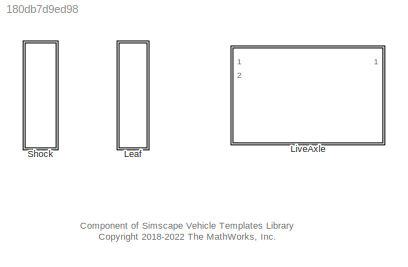
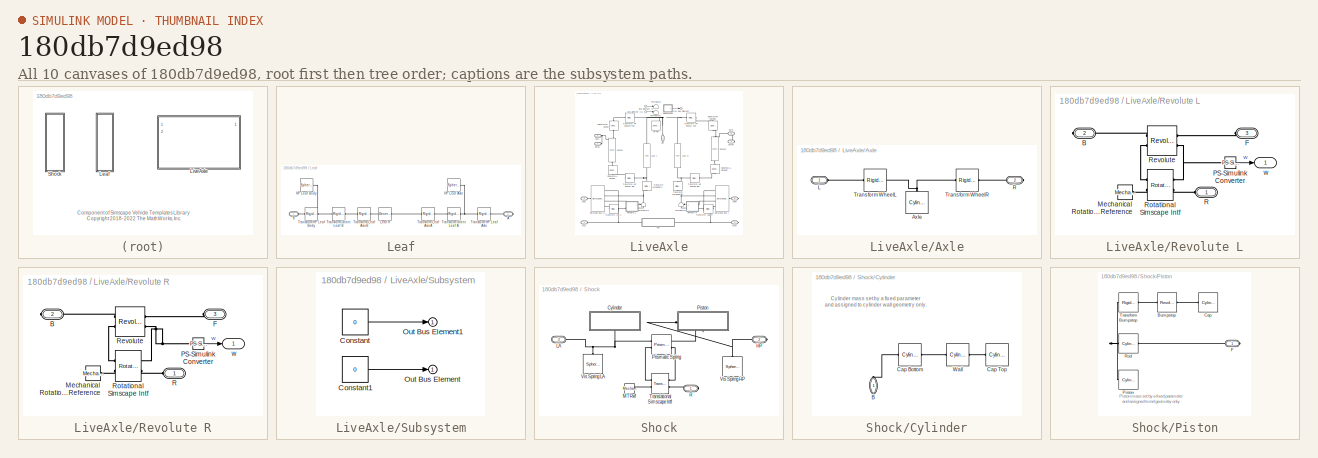
[diagram: thumbnail index - all 10 canvases of the model, root first then tree order]
MODEL slx_180db7d9ed98
KIND library
CONFIG AbsTol = auto
CONFIG EnableMultiTasking = off
CONFIG FixedStep = auto
CONFIG MaxStep = auto
CONFIG MinStep = auto
CONFIG RelTol = 1e-3
CONFIG SampleTimeConstraint = Unconstrained
CONFIG SolverName = VariableStepAuto
CONFIG StartTime = 0.0
CONFIG StopTime = 10.0
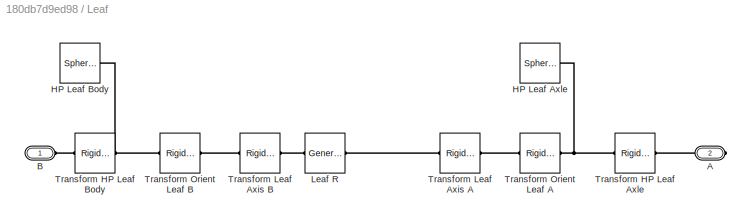
BLOCK [SubSystem] Leaf
  NameLocation = right
  Ports = [0, 0, 0, 0, 0, 1, 1]
  RequestExecContextInheritance = off
BLOCK [PMIOPort] Leaf/A
  Port = 2
  Side = Right
BLOCK [PMIOPort] Leaf/B
  Side = Left
BLOCK [Reference] Leaf/HP Leaf Axle  REF=sm_lib/Body Elements/Spherical Solid
  Ports = [0, 0, 0, 0, 0, 0, 1]
  SourceBlock = sm_lib/Body Elements/Spherical Solid
  SourceProductBaseCode = MS
  SourceType = Spherical Solid
BLOCK [Reference] Leaf/HP Leaf Body  REF=sm_lib/Body Elements/Spherical Solid
  Ports = [0, 0, 0, 0, 0, 0, 1]
  SourceBlock = sm_lib/Body Elements/Spherical Solid
  SourceProductBaseCode = MS
  SourceType = Spherical Solid
BLOCK [Reference] Leaf/Leaf R  REF=sm_lib/Body Elements/Flexible Bodies/Beams/General Flexible Beam
  Ports = [0, 0, 0, 0, 0, 1, 1]
  SourceBlock = sm_lib/Body Elements/Flexible Bodies/Beams/General Flexible Beam
  SourceProductBaseCode = MS
  SourceType = General Flexible Beam
BLOCK [Reference] Leaf/Transform HP Leaf Axle  REF=sm_lib/Frames and
Transforms/Rigid
Transform
  Ports = [0, 0, 0, 0, 0, 1, 1]
  SourceBlock = sm_lib/Frames and\nTransforms/Rigid\nTransform
  SourceProductBaseCode = MS
  SourceType = Rigid\nTransform
BLOCK [Reference] Leaf/Transform HP Leaf Body  REF=sm_lib/Frames and
Transforms/Rigid
Transform
  Ports = [0, 0, 0, 0, 0, 1, 1]
  SourceBlock = sm_lib/Frames and\nTransforms/Rigid\nTransform
  SourceProductBaseCode = MS
  SourceType = Rigid\nTransform
BLOCK [Reference] Leaf/Transform Leaf Axis A  REF=sm_lib/Frames and
Transforms/Rigid
Transform
  Ports = [0, 0, 0, 0, 0, 1, 1]
  SourceBlock = sm_lib/Frames and\nTransforms/Rigid\nTransform
  SourceProductBaseCode = MS
  SourceType = Rigid\nTransform
BLOCK [Reference] Leaf/Transform Leaf Axis B  REF=sm_lib/Frames and
Transforms/Rigid
Transform
  Ports = [0, 0, 0, 0, 0, 1, 1]
  SourceBlock = sm_lib/Frames and\nTransforms/Rigid\nTransform
  SourceProductBaseCode = MS
  SourceType = Rigid\nTransform
BLOCK [Reference] Leaf/Transform Orient Leaf A  REF=sm_lib/Frames and
Transforms/Rigid
Transform
  Ports = [0, 0, 0, 0, 0, 1, 1]
  SourceBlock = sm_lib/Frames and\nTransforms/Rigid\nTransform
  SourceProductBaseCode = MS
  SourceType = Rigid\nTransform
BLOCK [Reference] Leaf/Transform Orient Leaf B  REF=sm_lib/Frames and
Transforms/Rigid
Transform
  Ports = [0, 0, 0, 0, 0, 1, 1]
  SourceBlock = sm_lib/Frames and\nTransforms/Rigid\nTransform
  SourceProductBaseCode = MS
  SourceType = Rigid\nTransform
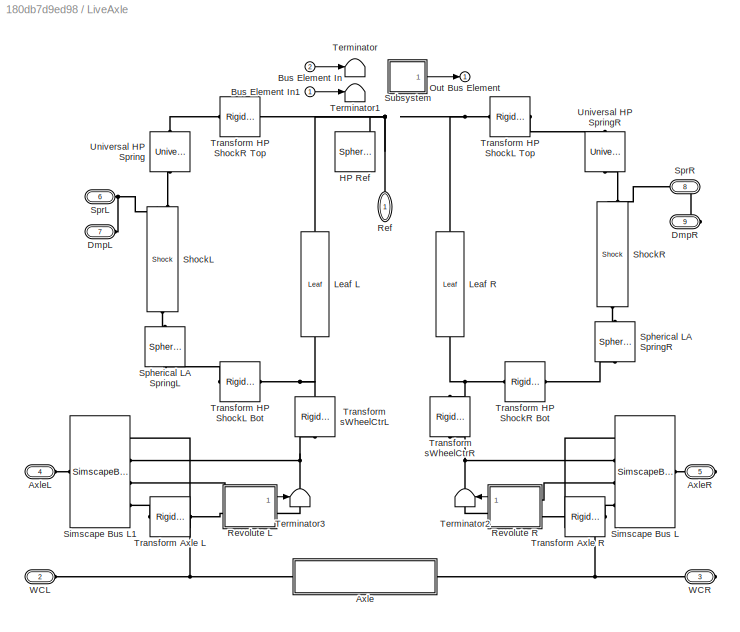
BLOCK [SubSystem] LiveAxle
  Ports = [2, 1, 0, 0, 0, 4, 5]
  RequestExecContextInheritance = off
  VariantControl = LiveAxle
BLOCK [Reference] LiveAxle/ Transform sWheelCtrL  REF=sm_lib/Frames and
Transforms/Rigid
Transform
  NameLocation = left
  Ports = [0, 0, 0, 0, 0, 1, 1]
  SourceBlock = sm_lib/Frames and\nTransforms/Rigid\nTransform
  SourceProductBaseCode = MS
  SourceType = Rigid\nTransform
BLOCK [Reference] LiveAxle/ Transform sWheelCtrR  REF=sm_lib/Frames and
Transforms/Rigid
Transform
  NameLocation = right
  Ports = [0, 0, 0, 0, 0, 1, 1]
  SourceBlock = sm_lib/Frames and\nTransforms/Rigid\nTransform
  SourceProductBaseCode = MS
  SourceType = Rigid\nTransform
BLOCK [SubSystem] LiveAxle/Axle
  Ports = [0, 0, 0, 0, 0, 1, 1]
  RequestExecContextInheritance = off
BLOCK [Reference] LiveAxle/Axle/Axle  REF=sm_lib/Body Elements/Cylindrical Solid
  NameLocation = right
  Ports = [0, 0, 0, 0, 0, 0, 1]
  SourceBlock = sm_lib/Body Elements/Cylindrical Solid
  SourceProductBaseCode = MS
  SourceType = Cylindrical Solid
BLOCK [PMIOPort] LiveAxle/Axle/L
  Side = Left
BLOCK [PMIOPort] LiveAxle/Axle/R
  Port = 2
  Side = Right
BLOCK [Reference] LiveAxle/Axle/Transform WheelL  REF=sm_lib/Frames and
Transforms/Rigid
Transform
  Ports = [0, 0, 0, 0, 0, 1, 1]
  SourceBlock = sm_lib/Frames and\nTransforms/Rigid\nTransform
  SourceProductBaseCode = MS
  SourceType = Rigid\nTransform
BLOCK [Reference] LiveAxle/Axle/Transform WheelR  REF=sm_lib/Frames and
Transforms/Rigid
Transform
  Ports = [0, 0, 0, 0, 0, 1, 1]
  SourceBlock = sm_lib/Frames and\nTransforms/Rigid\nTransform
  SourceProductBaseCode = MS
  SourceType = Rigid\nTransform
BLOCK [PMIOPort] LiveAxle/AxleL
  Port = 4
  Side = Left
BLOCK [PMIOPort] LiveAxle/AxleR
  Port = 5
  Side = Right
BLOCK [Inport] LiveAxle/Bus Element In
  Port = 2
BLOCK [Inport] LiveAxle/Bus Element In1
BLOCK [PMIOPort] LiveAxle/DmpL
  Port = 7
  Side = Left
BLOCK [PMIOPort] LiveAxle/DmpR
  Port = 9
  Side = Right
BLOCK [Reference] LiveAxle/HP Ref  REF=sm_lib/Body Elements/Spherical Solid
  Ports = [0, 0, 0, 0, 0, 0, 1]
  SourceBlock = sm_lib/Body Elements/Spherical Solid
  SourceProductBaseCode = MS
  SourceType = Spherical Solid
BLOCK [Reference] LiveAxle/Leaf L  REF=$bdroot/Leaf
  NameLocation = left
  Ports = [0, 0, 0, 0, 0, 1, 1]
  SourceBlock = $bdroot/Leaf
  SourceType = Leaf spring
BLOCK [Reference] LiveAxle/Leaf R  REF=$bdroot/Leaf
  NameLocation = right
  Ports = [0, 0, 0, 0, 0, 1, 1]
  SourceBlock = $bdroot/Leaf
  SourceType = Leaf spring
BLOCK [Outport] LiveAxle/Out Bus Element
  VectorParamsAs1DForOutWhenUnconnected = off
BLOCK [PMIOPort] LiveAxle/Ref
  NameLocation = left
  Side = Right
BLOCK [SubSystem] LiveAxle/Revolute L
  Ports = [0, 1, 0, 0, 0, 2, 1]
  RequestExecContextInheritance = off
BLOCK [PMIOPort] LiveAxle/Revolute L/B
  Port = 2
  Side = Right
BLOCK [PMIOPort] LiveAxle/Revolute L/F
  Port = 3
  Side = Left
BLOCK [Reference] LiveAxle/Revolute L/Mechanical Rotational Reference  REF=fl_lib/Mechanical/Rotational Elements/Mechanical
Rotational Reference
  Ports = [0, 0, 0, 0, 0, 1]
  SourceBlock = fl_lib/Mechanical/Rotational Elements/Mechanical\nRotational Reference
  SourceProductBaseCode = PW,SS,VE
  SourceType = Mechanical\nRotational Reference
BLOCK [Reference] LiveAxle/Revolute L/PS-Simulink Converter  REF=nesl_utility/PS-Simulink
Converter
  Ports = [0, 1, 0, 0, 0, 1]
  SourceBlock = nesl_utility/PS-Simulink\nConverter
  SourceProductBaseCode = SS,PW,VE
  SourceType = PS-Simulink\nConverter
BLOCK [PMIOPort] LiveAxle/Revolute L/R
  Side = Left
BLOCK [Reference] LiveAxle/Revolute L/Revolute  REF=sm_lib/Joints/Revolute Joint
  Ports = [0, 0, 0, 0, 0, 2, 2]
  SourceBlock = sm_lib/Joints/Revolute Joint
  SourceProductBaseCode = MS
  SourceType = Revolute Joint
BLOCK [Reference] LiveAxle/Revolute L/Rotational Simscape Intf  REF=sm_car_lib/Utilities/Rotational  (lib defined in slx_05426f0848b6, slx_5dc2867fb1c9)
Simscape Intf
  Ports = [0, 0, 0, 0, 0, 2, 2]
  SourceBlock = sm_car_lib/Utilities/Rotational\nSimscape Intf
  SourceType = SubSystem
BLOCK [Outport] LiveAxle/Revolute L/w
  VectorParamsAs1DForOutWhenUnconnected = off
BLOCK [SubSystem] LiveAxle/Revolute R
  Ports = [0, 1, 0, 0, 0, 2, 1]
  RequestExecContextInheritance = off
BLOCK [PMIOPort] LiveAxle/Revolute R/B
  Port = 2
  Side = Right
BLOCK [PMIOPort] LiveAxle/Revolute R/F
  Port = 3
  Side = Left
BLOCK [Reference] LiveAxle/Revolute R/Mechanical Rotational Reference  REF=fl_lib/Mechanical/Rotational Elements/Mechanical
Rotational Reference
  Ports = [0, 0, 0, 0, 0, 1]
  SourceBlock = fl_lib/Mechanical/Rotational Elements/Mechanical\nRotational Reference
  SourceProductBaseCode = PW,SS,VE
  SourceType = Mechanical\nRotational Reference
BLOCK [Reference] LiveAxle/Revolute R/PS-Simulink Converter  REF=nesl_utility/PS-Simulink
Converter
  Ports = [0, 1, 0, 0, 0, 1]
  SourceBlock = nesl_utility/PS-Simulink\nConverter
  SourceProductBaseCode = SS,PW,VE
  SourceType = PS-Simulink\nConverter
BLOCK [PMIOPort] LiveAxle/Revolute R/R
  Side = Left
BLOCK [Reference] LiveAxle/Revolute R/Revolute  REF=sm_lib/Joints/Revolute Joint
  Ports = [0, 0, 0, 0, 0, 2, 2]
  SourceBlock = sm_lib/Joints/Revolute Joint
  SourceProductBaseCode = MS
  SourceType = Revolute Joint
BLOCK [Reference] LiveAxle/Revolute R/Rotational Simscape Intf  REF=sm_car_lib/Utilities/Rotational  (lib defined in slx_05426f0848b6, slx_5dc2867fb1c9)
Simscape Intf
  Ports = [0, 0, 0, 0, 0, 2, 2]
  SourceBlock = sm_car_lib/Utilities/Rotational\nSimscape Intf
  SourceType = SubSystem
BLOCK [Outport] LiveAxle/Revolute R/w
  VectorParamsAs1DForOutWhenUnconnected = off
BLOCK [Reference] LiveAxle/ShockL  REF=$bdroot/Shock
  NameLocation = right
  Ports = [0, 0, 0, 0, 0, 1, 2]
  SourceBlock = $bdroot/Shock
  SourceType = Shock Absorber Parts
BLOCK [Reference] LiveAxle/ShockR  REF=$bdroot/Shock
  NameLocation = left
  Ports = [0, 0, 0, 0, 0, 1, 2]
  SourceBlock = $bdroot/Shock
  SourceType = Shock Absorber Parts
BLOCK [SimscapeBus] LiveAxle/Simscape Bus L
  HierarchyStrings = RaceSpin;RaceFix;Axle1D;AxleIn
  Ports = [0, 0, 0, 0, 0, 4, 1]
BLOCK [SimscapeBus] LiveAxle/Simscape Bus L1
  HierarchyStrings = RaceSpin;RaceFix;Axle1D;AxleIn
  Ports = [0, 0, 0, 0, 0, 4, 1]
BLOCK [Reference] LiveAxle/Spherical LA SpringL  REF=sm_lib/Joints/Spherical
Joint
  NameLocation = left
  Ports = [0, 0, 0, 0, 0, 1, 1]
  SourceBlock = sm_lib/Joints/Spherical\nJoint
  SourceProductBaseCode = MS
  SourceType = Spherical\nJoint
BLOCK [Reference] LiveAxle/Spherical LA SpringR  REF=sm_lib/Joints/Spherical
Joint
  NameLocation = right
  Ports = [0, 0, 0, 0, 0, 1, 1]
  SourceBlock = sm_lib/Joints/Spherical\nJoint
  SourceProductBaseCode = MS
  SourceType = Spherical\nJoint
BLOCK [PMIOPort] LiveAxle/SprL
  Port = 6
  Side = Left
BLOCK [PMIOPort] LiveAxle/SprR
  Port = 8
  Side = Right
BLOCK [SubSystem] LiveAxle/Subsystem
  Ports = [0, 1]
  RequestExecContextInheritance = off
BLOCK [Constant] LiveAxle/Subsystem/Constant
  Value = 0
BLOCK [Constant] LiveAxle/Subsystem/Constant1
  Value = 0
BLOCK [Outport] LiveAxle/Subsystem/Out Bus Element
  VectorParamsAs1DForOutWhenUnconnected = off
BLOCK [Outport] LiveAxle/Subsystem/Out Bus Element1
  VectorParamsAs1DForOutWhenUnconnected = off
BLOCK [Terminator] LiveAxle/Terminator
BLOCK [Terminator] LiveAxle/Terminator1
BLOCK [Terminator] LiveAxle/Terminator2
BLOCK [Terminator] LiveAxle/Terminator3
BLOCK [Reference] LiveAxle/Transform Axle L  REF=sm_lib/Frames and
Transforms/Rigid
Transform
  Ports = [0, 0, 0, 0, 0, 1, 1]
  SourceBlock = sm_lib/Frames and\nTransforms/Rigid\nTransform
  SourceProductBaseCode = MS
  SourceType = Rigid\nTransform
BLOCK [Reference] LiveAxle/Transform Axle R  REF=sm_lib/Frames and
Transforms/Rigid
Transform
  Ports = [0, 0, 0, 0, 0, 1, 1]
  SourceBlock = sm_lib/Frames and\nTransforms/Rigid\nTransform
  SourceProductBaseCode = MS
  SourceType = Rigid\nTransform
BLOCK [Reference] LiveAxle/Transform HP ShockL Bot  REF=sm_lib/Frames and
Transforms/Rigid
Transform
  NameLocation = top
  Ports = [0, 0, 0, 0, 0, 1, 1]
  SourceBlock = sm_lib/Frames and\nTransforms/Rigid\nTransform
  SourceProductBaseCode = MS
  SourceType = Rigid\nTransform
BLOCK [Reference] LiveAxle/Transform HP ShockL Top  REF=sm_lib/Frames and
Transforms/Rigid
Transform
  Ports = [0, 0, 0, 0, 0, 1, 1]
  SourceBlock = sm_lib/Frames and\nTransforms/Rigid\nTransform
  SourceProductBaseCode = MS
  SourceType = Rigid\nTransform
BLOCK [Reference] LiveAxle/Transform HP ShockR Bot  REF=sm_lib/Frames and
Transforms/Rigid
Transform
  NameLocation = top
  Ports = [0, 0, 0, 0, 0, 1, 1]
  SourceBlock = sm_lib/Frames and\nTransforms/Rigid\nTransform
  SourceProductBaseCode = MS
  SourceType = Rigid\nTransform
BLOCK [Reference] LiveAxle/Transform HP ShockR Top  REF=sm_lib/Frames and
Transforms/Rigid
Transform
  Ports = [0, 0, 0, 0, 0, 1, 1]
  SourceBlock = sm_lib/Frames and\nTransforms/Rigid\nTransform
  SourceProductBaseCode = MS
  SourceType = Rigid\nTransform
BLOCK [Reference] LiveAxle/Universal HP Spring  REF=sm_lib/Joints/Universal
Joint
  NameLocation = left
  Ports = [0, 0, 0, 0, 0, 1, 1]
  SourceBlock = sm_lib/Joints/Universal\nJoint
  SourceProductBaseCode = MS
  SourceType = Universal\nJoint
BLOCK [Reference] LiveAxle/Universal HP SpringR  REF=sm_lib/Joints/Universal
Joint
  NameLocation = right
  Ports = [0, 0, 0, 0, 0, 1, 1]
  SourceBlock = sm_lib/Joints/Universal\nJoint
  SourceProductBaseCode = MS
  SourceType = Universal\nJoint
BLOCK [PMIOPort] LiveAxle/WCL
  Port = 2
  Side = Left
BLOCK [PMIOPort] LiveAxle/WCR
  Port = 3
  Side = Right
BLOCK [SubSystem] Shock
  NameLocation = right
  Ports = [0, 0, 0, 0, 0, 1, 2]
  RequestExecContextInheritance = off
BLOCK [SubSystem] Shock/Cylinder
  NameLocation = left
  Ports = [0, 0, 0, 0, 0, 1]
  RequestExecContextInheritance = off
BLOCK [PMIOPort] Shock/Cylinder/B
  NameLocation = right
  Side = Left
BLOCK [Reference] Shock/Cylinder/Cap Bottom  REF=sm_lib/Body Elements/Cylindrical Solid
  Ports = [0, 0, 0, 0, 0, 1, 1]
  SourceBlock = sm_lib/Body Elements/Cylindrical Solid
  SourceProductBaseCode = MS
  SourceType = Cylindrical Solid
BLOCK [Reference] Shock/Cylinder/Cap Top  REF=sm_lib/Body Elements/Cylindrical Solid
  Ports = [0, 0, 0, 0, 0, 1]
  SourceBlock = sm_lib/Body Elements/Cylindrical Solid
  SourceProductBaseCode = MS
  SourceType = Cylindrical Solid
BLOCK [Reference] Shock/Cylinder/Wall  REF=sm_lib/Body Elements/Cylindrical Solid
  Ports = [0, 0, 0, 0, 0, 1, 1]
  SourceBlock = sm_lib/Body Elements/Cylindrical Solid
  SourceProductBaseCode = MS
  SourceType = Cylindrical Solid
BLOCK [PMIOPort] Shock/HP
  Port = 2
  Side = Right
BLOCK [PMIOPort] Shock/LA
  Port = 3
  Side = Left
BLOCK [Reference] Shock/MTRef  REF=fl_lib/Mechanical/Translational
Elements/Mechanical
Translational
Reference
  Ports = [0, 0, 0, 0, 0, 1]
  SourceBlock = fl_lib/Mechanical/Translational\nElements/Mechanical\nTranslational\nReference
  SourceProductBaseCode = PW,SS,VE
  SourceType = Mechanical\nTranslational\nReference
BLOCK [SubSystem] Shock/Piston
  NameLocation = right
  Ports = [0, 0, 0, 0, 0, 0, 1]
  RequestExecContextInheritance = off
BLOCK [Reference] Shock/Piston/Bumpstop  REF=sm_lib/Body Elements/Revolved Solid
  Ports = [0, 0, 0, 0, 0, 1, 1]
  SourceBlock = sm_lib/Body Elements/Revolved Solid
  SourceProductBaseCode = MS
  SourceType = Revolved Solid
BLOCK [Reference] Shock/Piston/Cap  REF=sm_lib/Body Elements/Cylindrical Solid
  Ports = [0, 0, 0, 0, 0, 1]
  SourceBlock = sm_lib/Body Elements/Cylindrical Solid
  SourceProductBaseCode = MS
  SourceType = Cylindrical Solid
BLOCK [PMIOPort] Shock/Piston/F
  Side = Right
BLOCK [Reference] Shock/Piston/Piston  REF=sm_lib/Body Elements/Cylindrical Solid
  Ports = [0, 0, 0, 0, 0, 1]
  SourceBlock = sm_lib/Body Elements/Cylindrical Solid
  SourceProductBaseCode = MS
  SourceType = Cylindrical Solid
BLOCK [Reference] Shock/Piston/Rod  REF=sm_lib/Body Elements/Cylindrical Solid
  Ports = [0, 0, 0, 0, 0, 1, 1]
  SourceBlock = sm_lib/Body Elements/Cylindrical Solid
  SourceProductBaseCode = MS
  SourceType = Cylindrical Solid
BLOCK [Reference] Shock/Piston/Transform Bumpstop  REF=sm_lib/Frames and
Transforms/Rigid
Transform
  Ports = [0, 0, 0, 0, 0, 1, 1]
  SourceBlock = sm_lib/Frames and\nTransforms/Rigid\nTransform
  SourceProductBaseCode = MS
  SourceType = Rigid\nTransform
BLOCK [Reference] Shock/Prismatic Spring  REF=sm_lib/Joints/Prismatic
Joint
  Ports = [0, 0, 0, 0, 0, 2, 2]
  SourceBlock = sm_lib/Joints/Prismatic\nJoint
  SourceProductBaseCode = MS
  SourceType = Prismatic\nJoint
BLOCK [PMIOPort] Shock/R
  Side = Right
BLOCK [Reference] Shock/Translational Simscape Intf  REF=sm_car_lib/Utilities/Translational  (lib defined in slx_05426f0848b6, slx_5dc2867fb1c9)
Simscape Intf
  Ports = [0, 0, 0, 0, 0, 2, 2]
  SourceBlock = sm_car_lib/Utilities/Translational\nSimscape Intf
  SourceType = SubSystem
BLOCK [Reference] Shock/Vis Spring HP  REF=sm_lib/Body Elements/Spherical Solid
  NameLocation = right
  Ports = [0, 0, 0, 0, 0, 0, 1]
  SourceBlock = sm_lib/Body Elements/Spherical Solid
  SourceProductBaseCode = MS
  SourceType = Spherical Solid
BLOCK [Reference] Shock/Vis Spring LA  REF=sm_lib/Body Elements/Spherical Solid
  NameLocation = left
  Ports = [0, 0, 0, 0, 0, 0, 1]
  SourceBlock = sm_lib/Body Elements/Spherical Solid
  SourceProductBaseCode = MS
  SourceType = Spherical Solid
ANNOTATION (root): Component of Simscape Vehicle Templates Library <copyright redacted>
ANNOTATION Shock/Cylinder: Cylinder mass set by a fixed parameter and assigned to cylinder wall geometry only.
ANNOTATION Shock/Piston: Piston mass set by a fixed parameter and assigned to rod geometry only.
LINE LiveAxle/Bus Element In1:1 -> LiveAxle/Terminator1:1
LINE LiveAxle/Bus Element In:1 -> LiveAxle/Terminator:1
LINE LiveAxle/Revolute L/PS-Simulink Converter:1 -> LiveAxle/Revolute L/w:1
LINE LiveAxle/Revolute L:1 -> LiveAxle/Terminator3:1
LINE LiveAxle/Revolute R/PS-Simulink Converter:1 -> LiveAxle/Revolute R/w:1
LINE LiveAxle/Revolute R:1 -> LiveAxle/Terminator2:1
LINE LiveAxle/Subsystem/Constant1:1 -> LiveAxle/Subsystem/Out Bus Element:1
LINE LiveAxle/Subsystem/Constant:1 -> LiveAxle/Subsystem/Out Bus Element1:1
LINE LiveAxle/Subsystem:1 -> LiveAxle/Out Bus Element:1
PLINE Leaf/A:RConn1 -- Leaf/Transform HP Leaf Axle:LConn1
PLINE Leaf/B:RConn1 -- Leaf/Transform HP Leaf Body:LConn1
PNET net1: Leaf/HP Leaf Axle:RConn1 -- Leaf/Transform HP Leaf Axle:RConn1 -- Leaf/Transform Orient Leaf A:LConn1
PNET net2: Leaf/HP Leaf Body:RConn1 -- Leaf/Transform HP Leaf Body:RConn1 -- Leaf/Transform Orient Leaf B:LConn1
PLINE Leaf/Leaf R:LConn1 -- Leaf/Transform Leaf Axis B:RConn1
PLINE Leaf/Leaf R:RConn1 -- Leaf/Transform Leaf Axis A:RConn1
PLINE Leaf/Transform Leaf Axis A:LConn1 -- Leaf/Transform Orient Leaf A:RConn1
PLINE Leaf/Transform Leaf Axis B:LConn1 -- Leaf/Transform Orient Leaf B:RConn1
PNET net3: LiveAxle/ Transform sWheelCtrL:LConn1 -- LiveAxle/Leaf L:RConn1 -- LiveAxle/Transform HP ShockL Bot:LConn1
PNET net4: LiveAxle/ Transform sWheelCtrL:RConn1 -- LiveAxle/Revolute L:RConn1 -- LiveAxle/Simscape Bus L1:LConn2
PNET net5: LiveAxle/ Transform sWheelCtrR:LConn1 -- LiveAxle/Leaf R:RConn1 -- LiveAxle/Transform HP ShockR Bot:LConn1
PNET net6: LiveAxle/ Transform sWheelCtrR:RConn1 -- LiveAxle/Revolute R:RConn1 -- LiveAxle/Simscape Bus L:LConn2
PNET net7: LiveAxle/Axle/Axle:RConn1 -- LiveAxle/Axle/Transform WheelL:LConn1 -- LiveAxle/Axle/Transform WheelR:RConn1
PLINE LiveAxle/Axle/L:RConn1 -- LiveAxle/Axle/Transform WheelL:RConn1
PLINE LiveAxle/Axle/R:RConn1 -- LiveAxle/Axle/Transform WheelR:LConn1
PNET net8: LiveAxle/Axle:LConn1 -- LiveAxle/Revolute L:LConn2 -- LiveAxle/Simscape Bus L1:LConn1 -- LiveAxle/Transform Axle L:RConn1 -- LiveAxle/WCL:RConn1
PNET net9: LiveAxle/Axle:RConn1 -- LiveAxle/Revolute R:LConn2 -- LiveAxle/Simscape Bus L:LConn1 -- LiveAxle/Transform Axle R:LConn1 -- LiveAxle/WCR:RConn1
PLINE LiveAxle/AxleL:RConn1 -- LiveAxle/Simscape Bus L1:RConn1
PLINE LiveAxle/AxleR:RConn1 -- LiveAxle/Simscape Bus L:RConn1
PNET net10: LiveAxle/DmpL:RConn1 -- LiveAxle/ShockL:RConn1 -- LiveAxle/SprL:RConn1
PNET net11: LiveAxle/DmpR:RConn1 -- LiveAxle/ShockR:RConn1 -- LiveAxle/SprR:RConn1
PNET net12: LiveAxle/HP Ref:RConn1 -- LiveAxle/Leaf L:LConn1 -- LiveAxle/Leaf R:LConn1 -- LiveAxle/Ref:RConn1 -- LiveAxle/Transform HP ShockL Top:LConn1 -- LiveAxle/Transform HP ShockR Top:LConn1
PLINE LiveAxle/Revolute L/B:RConn1 -- LiveAxle/Revolute L/Revolute:LConn1
PLINE LiveAxle/Revolute L/F:RConn1 -- LiveAxle/Revolute L/Revolute:RConn1
PLINE LiveAxle/Revolute L/Mechanical Rotational Reference:LConn1 -- LiveAxle/Revolute L/Rotational Simscape Intf:LConn2
PNET net13: LiveAxle/Revolute L/PS-Simulink Converter:LConn1 -- LiveAxle/Revolute L/Revolute:RConn2 -- LiveAxle/Revolute L/Rotational Simscape Intf:RConn1
PLINE LiveAxle/Revolute L/R:RConn1 -- LiveAxle/Revolute L/Rotational Simscape Intf:RConn2
PLINE LiveAxle/Revolute L/Revolute:LConn2 -- LiveAxle/Revolute L/Rotational Simscape Intf:LConn1
PLINE LiveAxle/Revolute L:LConn1 -- LiveAxle/Simscape Bus L1:LConn3
PLINE LiveAxle/Revolute R/B:RConn1 -- LiveAxle/Revolute R/Revolute:LConn1
PLINE LiveAxle/Revolute R/F:RConn1 -- LiveAxle/Revolute R/Revolute:RConn1
PLINE LiveAxle/Revolute R/Mechanical Rotational Reference:LConn1 -- LiveAxle/Revolute R/Rotational Simscape Intf:LConn2
PNET net14: LiveAxle/Revolute R/PS-Simulink Converter:LConn1 -- LiveAxle/Revolute R/Revolute:RConn2 -- LiveAxle/Revolute R/Rotational Simscape Intf:RConn1
PLINE LiveAxle/Revolute R/R:RConn1 -- LiveAxle/Revolute R/Rotational Simscape Intf:RConn2
PLINE LiveAxle/Revolute R/Revolute:LConn2 -- LiveAxle/Revolute R/Rotational Simscape Intf:LConn1
PLINE LiveAxle/Revolute R:LConn1 -- LiveAxle/Simscape Bus L:LConn3
PLINE LiveAxle/ShockL:LConn1 -- LiveAxle/Spherical LA SpringL:RConn1
PLINE LiveAxle/ShockL:RConn2 -- LiveAxle/Universal HP Spring:RConn1
PLINE LiveAxle/ShockR:LConn1 -- LiveAxle/Spherical LA SpringR:RConn1
PLINE LiveAxle/ShockR:RConn2 -- LiveAxle/Universal HP SpringR:RConn1
PLINE LiveAxle/Simscape Bus L1:LConn4 -- LiveAxle/Transform Axle L:LConn1
PLINE LiveAxle/Simscape Bus L:LConn4 -- LiveAxle/Transform Axle R:RConn1
PLINE LiveAxle/Spherical LA SpringL:LConn1 -- LiveAxle/Transform HP ShockL Bot:RConn1
PLINE LiveAxle/Spherical LA SpringR:LConn1 -- LiveAxle/Transform HP ShockR Bot:RConn1
PLINE LiveAxle/Transform HP ShockL Top:RConn1 -- LiveAxle/Universal HP SpringR:LConn1
PLINE LiveAxle/Transform HP ShockR Top:RConn1 -- LiveAxle/Universal HP Spring:LConn1
PLINE Shock/Cylinder/B:RConn1 -- Shock/Cylinder/Cap Bottom:RConn1
PLINE Shock/Cylinder/Cap Bottom:LConn1 -- Shock/Cylinder/Wall:RConn1
PLINE Shock/Cylinder/Cap Top:LConn1 -- Shock/Cylinder/Wall:LConn1
PNET net15: Shock/Cylinder:LConn1 -- Shock/LA:RConn1 -- Shock/Prismatic Spring:LConn1 -- Shock/Vis Spring LA:RConn1
PNET net16: Shock/HP:RConn1 -- Shock/Piston:RConn1 -- Shock/Prismatic Spring:RConn1 -- Shock/Vis Spring HP:RConn1
PLINE Shock/MTRef:LConn1 -- Shock/Translational Simscape Intf:LConn2
PLINE Shock/Piston/Bumpstop:LConn1 -- Shock/Piston/Cap:LConn1
PLINE Shock/Piston/Bumpstop:RConn1 -- Shock/Piston/Transform Bumpstop:RConn1
PLINE Shock/Piston/F:RConn1 -- Shock/Piston/Rod:LConn1
PNET net17: Shock/Piston/Piston:LConn1 -- Shock/Piston/Rod:RConn1 -- Shock/Piston/Transform Bumpstop:LConn1
PLINE Shock/Prismatic Spring:LConn2 -- Shock/Translational Simscape Intf:LConn1
PLINE Shock/Prismatic Spring:RConn2 -- Shock/Translational Simscape Intf:RConn1
PLINE Shock/R:RConn1 -- Shock/Translational Simscape Intf:RConn2
note: PNET lines group multi-terminal physical nets as a canonical sorted terminal list (undirected conserving connections); 2-terminal nets keep the pairwise PLINE form
